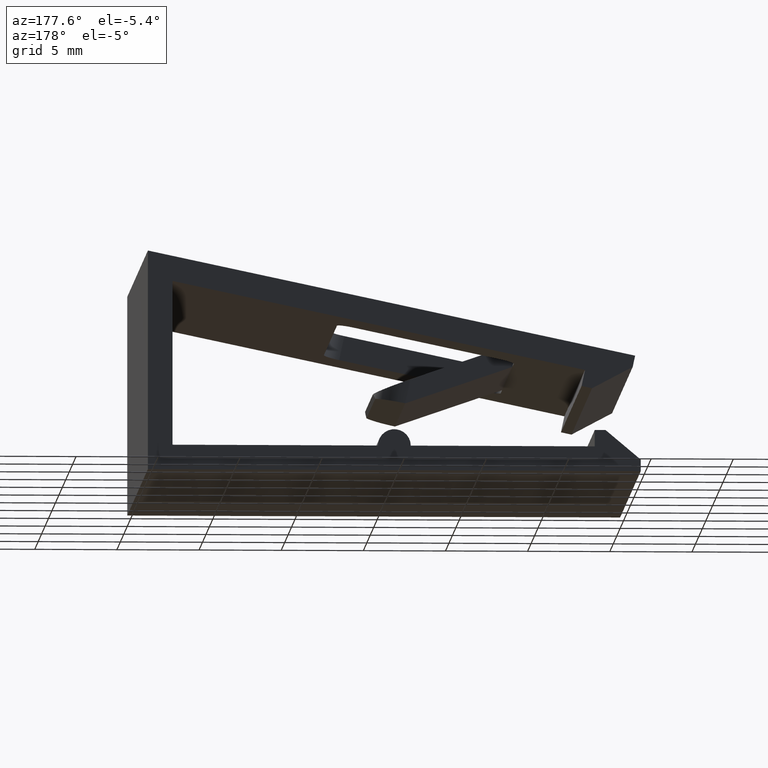
[diagram: clean part render]
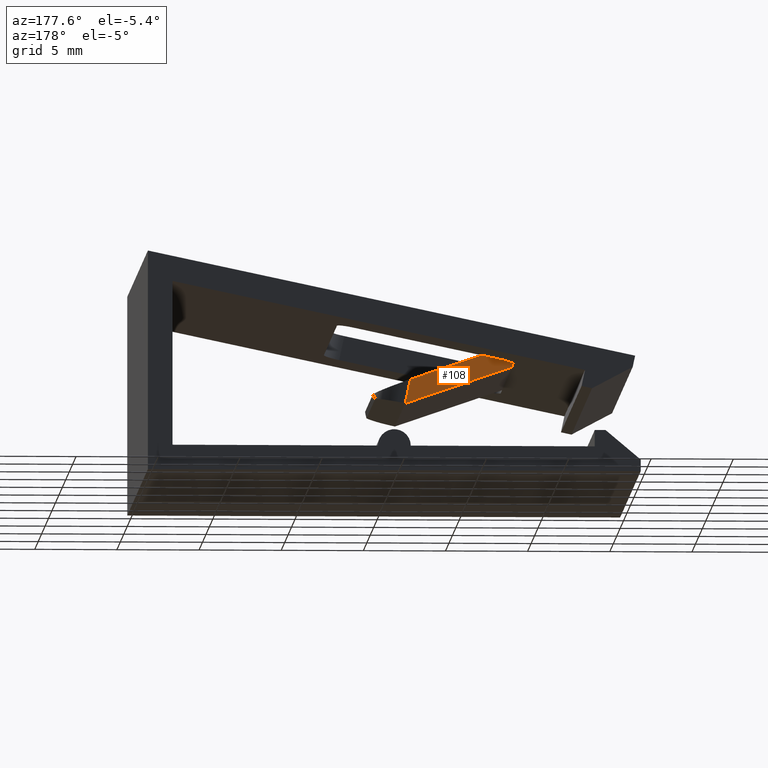
[diagram: same view with one face highlighted and labeled with its STEP entity id]
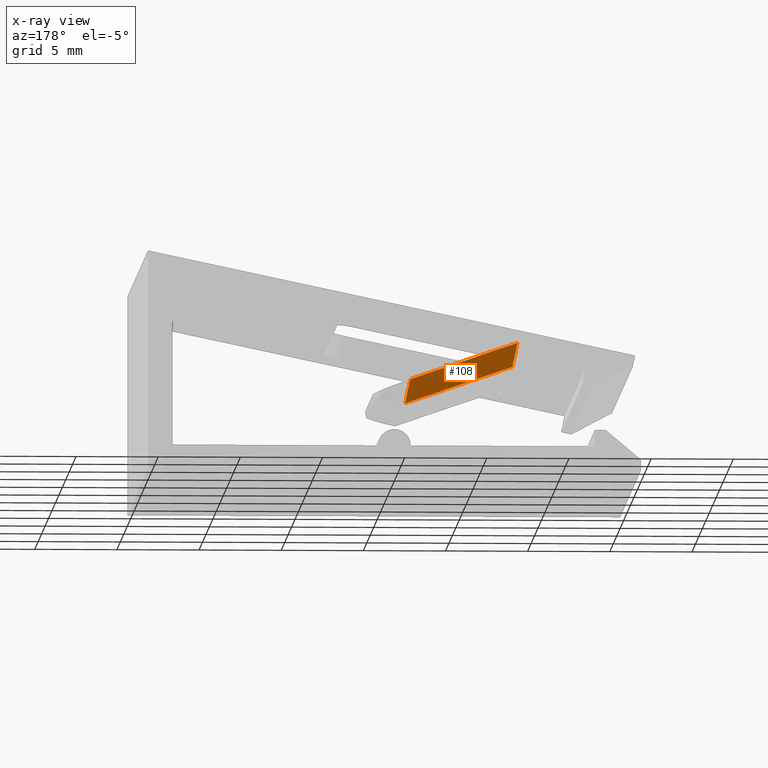
[diagram: x-ray of the same camera — body ghosted, the highlighted face saturated]
A machine part, auxiliary view. The second image highlights one B-rep face of the part: STEP entity #108.
The next image is the same camera in x-ray: the body ghosted, the highlighted face saturated — about 9% of this face is hidden behind the body in this view.
In plain terms, the highlighted planar face has unit normal (-0, -1, -0).
Its self-contained STEP definition (entity closure, byte-faithful):
#108 = ADVANCED_FACE( '', ( #179 ), #180, .F. );
#179 = FACE_OUTER_BOUND( '', #251, .T. );
#180 = PLANE( '', #252 );
#251 = EDGE_LOOP( '', ( #532, #533, #534, #535 ) );
#252 = AXIS2_PLACEMENT_3D( '', #536, #537, #538 );
#532 = ORIENTED_EDGE( '', *, *, #636, .T. );
#533 = ORIENTED_EDGE( '', *, *, #638, .F. );
#534 = ORIENTED_EDGE( '', *, *, #561, .T. );
#535 = ORIENTED_EDGE( '', *, *, #578, .T. );
#536 = CARTESIAN_POINT( '', ( -6.75883193166962, 7.50000000000000, 3.56336592369874 ) );
#537 = DIRECTION( '', ( -6.12303176911189E-017, -1.00000000000000, -1.83690953073357E-016 ) );
#538 = DIRECTION( '', ( -0.325531877810218, 1.93617922947431E-016, -0.945531065872165 ) );
#561 = EDGE_CURVE( '', #660, #665, #667, .T. );
#578 = EDGE_CURVE( '', #665, #698, #699, .T. );
#636 = EDGE_CURVE( '', #698, #787, #789, .T. );
#638 = EDGE_CURVE( '', #660, #787, #791, .T. );
#660 = VERTEX_POINT( '', #821 );
#665 = VERTEX_POINT( '', #828 );
#667 = LINE( '', #831, #832 );
#698 = VERTEX_POINT( '', #874 );
#699 = LINE( '', #875, #876 );
#787 = VERTEX_POINT( '', #1015 );
#789 = LINE( '', #1017, #1018 );
#791 = LINE( '', #1020, #1021 );
#821 = CARTESIAN_POINT( '', ( -0.978147600733781, 7.50000000000000, 4.79208830918224 ) );
#828 = CARTESIAN_POINT( '', ( -7.49739481687761, 7.50000000000000, 7.03803111119153 ) );
#831 = CARTESIAN_POINT( '', ( -0.978147600733760, 7.50000000000000, 4.79208830918225 ) );
#832 = VECTOR( '', #1045, 1000.00000000000 );
#874 = CARTESIAN_POINT( '', ( -7.80926235310428, 7.50000000000000, 8.50525251229226 ) );
#875 = CARTESIAN_POINT( '', ( -7.49739481687760, 7.50000000000000, 7.03803111119152 ) );
#876 = VECTOR( '', #1072, 1000.00000000000 );
#1015 = CARTESIAN_POINT( '', ( -1.29035128937098, 7.50000000000000, 6.26089118303497 ) );
#1017 = CARTESIAN_POINT( '', ( -7.80926235310428, 7.50000000000000, 8.50525251229226 ) );
#1018 = VECTOR( '', #1142, 1000.00000000000 );
#1020 = CARTESIAN_POINT( '', ( -0.781107877261863, 7.50000000000000, 3.86508929337290 ) );
#1021 = VECTOR( '', #1146, 1000.00000000000 );
#1045 = DIRECTION( '', ( -0.945465617101864, -1.94100917470090E-018, 0.325721916484281 ) );
#1072 = DIRECTION( '', ( -0.207911690817759, -1.66946366144741E-016, 0.978147600733806 ) );
#1142 = DIRECTION( '', ( 0.945531065872165, 1.90209334054346E-018, -0.325531877810218 ) );
#1146 = DIRECTION( '', ( -0.207911690817759, -1.36593800842229E-016, 0.978147600733806 ) );